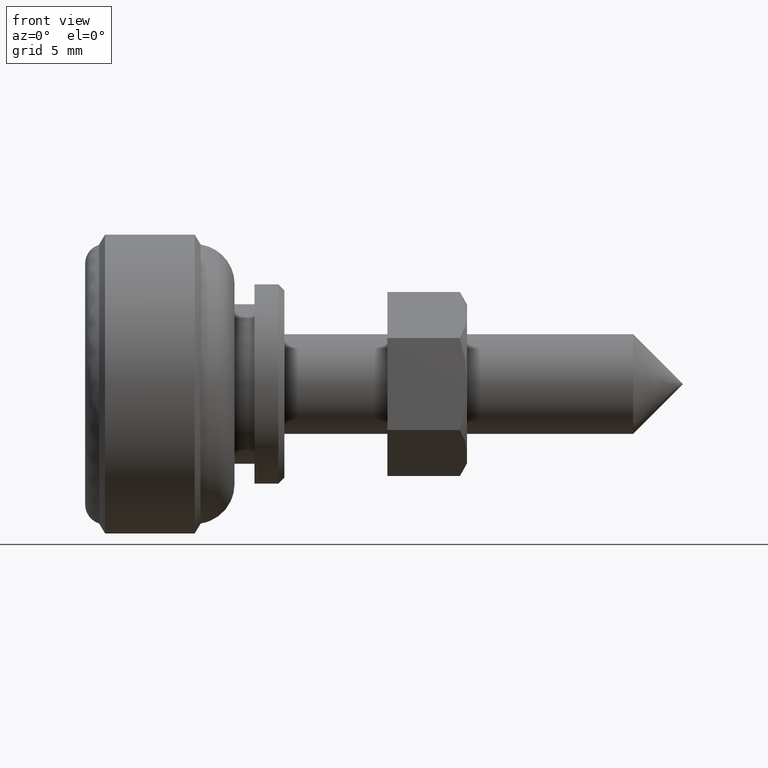
[diagram: clean part render]
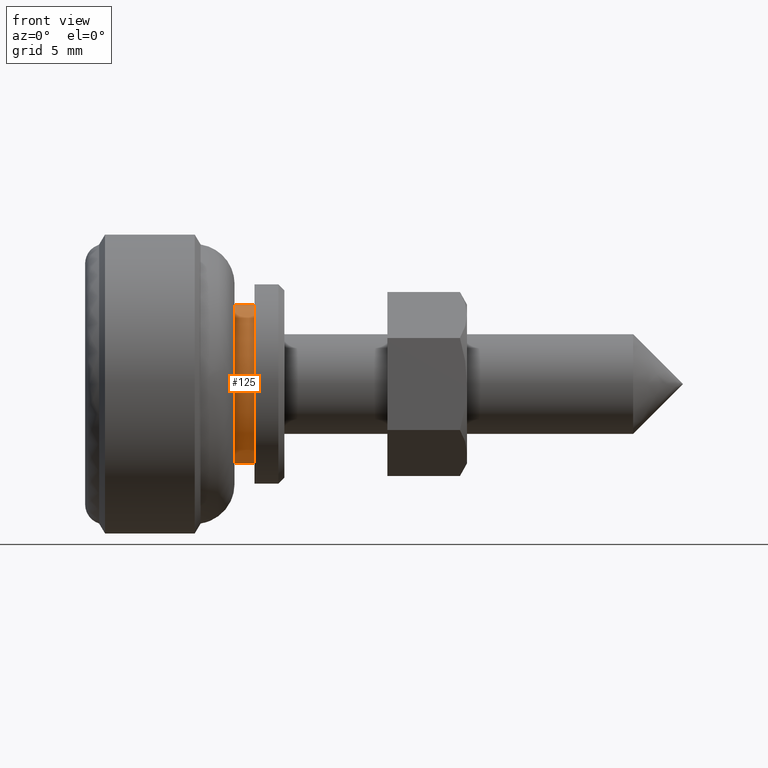
[diagram: same view with one face highlighted and labeled with its STEP entity id]
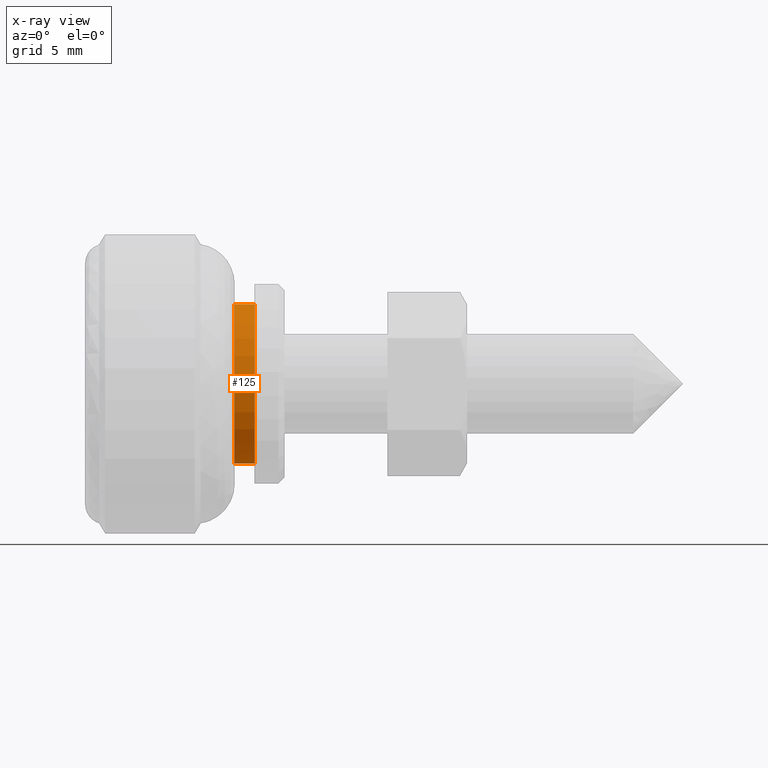
[diagram: x-ray of the same camera — body ghosted, the highlighted face saturated]
A machine part, front view. The second image highlights one B-rep face of the part: STEP entity #125.
The next image is the same camera in x-ray: the body ghosted, the highlighted face saturated — about 0% of this face is hidden behind the body in this view.
In plain terms, the highlighted cylindrical surface (partial cylindrical patch) has radius 4 mm, axis along (1, 0, 0).
Its self-contained STEP definition (entity closure, byte-faithful):
#125=ADVANCED_FACE('',(#286),#285,.T.);
#285=CYLINDRICAL_SURFACE('',#652,4.00000000000E+00);
#286=FACE_OUTER_BOUND('',#653,.T.);
#649=CARTESIAN_POINT('',(0.00000000000E+00,0.00000000000E+00,1.79625203600E-11));
#650=DIRECTION('',(1.00000000000E+00,-0.00000000000E+00,-0.00000000000E+00));
#651=DIRECTION('',(-0.00000000000E+00,-0.00000000000E+00,-1.00000000000E+00));
#652=AXIS2_PLACEMENT_3D('',#649,#650,#651);
#653=EDGE_LOOP('',(#954,#955,#956,#957));
#954=ORIENTED_EDGE('',*,*,#1087,.F.);
#955=ORIENTED_EDGE('',*,*,#1100,.T.);
#956=ORIENTED_EDGE('',*,*,#1082,.T.);
#957=ORIENTED_EDGE('',*,*,#1101,.F.);
#1082=EDGE_CURVE('',#1214,#1215,#1216,.T.);
#1087=EDGE_CURVE('',#1243,#1242,#1250,.T.);
#1100=EDGE_CURVE('',#1243,#1214,#1333,.T.);
#1101=EDGE_CURVE('',#1242,#1215,#1339,.T.);
#1214=VERTEX_POINT('',#1753);
#1215=VERTEX_POINT('',#1754);
#1216=CIRCLE('',#1758,4.00000000000E+00);
#1242=VERTEX_POINT('',#1773);
#1243=VERTEX_POINT('',#1774);
#1250=CIRCLE('',#1782,4.00000000000E+00);
#1333=(BOUNDED_CURVE() B_SPLINE_CURVE(1,(#1820,#1821),.UNSPECIFIED.,.F.,.F.) B_SPLINE_CURVE_WITH_KNOTS((2,2),(8.33332935974E-02,9.16666633252E-01),.UNSPECIFIED.) CURVE() GEOMETRIC_REPRESENTATION_ITEM() RATIONAL_B_SPLINE_CURVE((1.00000000000E+00,1.00000000000E+00)) REPRESENTATION_ITEM('') );
#1339=(BOUNDED_CURVE() B_SPLINE_CURVE(1,(#1822,#1823),.UNSPECIFIED.,.F.,.F.) B_SPLINE_CURVE_WITH_KNOTS((2,2),(8.33333333333E-02,9.16666666667E-01),.UNSPECIFIED.) CURVE() GEOMETRIC_REPRESENTATION_ITEM() RATIONAL_B_SPLINE_CURVE((7.50000000000E-01,7.50000000000E-01)) REPRESENTATION_ITEM('') );
#1753=CARTESIAN_POINT('',(-2.15000000000E+01,4.44089209850E-16,-3.99999999998E+00));
#1754=CARTESIAN_POINT('',(-2.15000000000E+01,0.00000000000E+00,4.00000000002E+00));
#1755=CARTESIAN_POINT('',(-2.15000000000E+01,0.00000000000E+00,1.79625203600E-11));
#1756=DIRECTION('',(-1.00000000000E+00,0.00000000000E+00,0.00000000000E+00));
#1757=DIRECTION('',(0.00000000000E+00,-1.22460635382E-16,1.00000000000E+00));
#1758=AXIS2_PLACEMENT_3D('',#1755,#1756,#1757);
#1773=CARTESIAN_POINT('',(-2.25000000000E+01,0.00000000000E+00,4.00000000002E+00));
#1774=CARTESIAN_POINT('',(-2.25000000000E+01,4.44089209850E-16,-3.99999999998E+00));
#1779=CARTESIAN_POINT('',(-2.25000000000E+01,0.00000000000E+00,1.79625203600E-11));
#1780=DIRECTION('',(-1.00000000000E+00,0.00000000000E+00,0.00000000000E+00));
#1781=DIRECTION('',(0.00000000000E+00,-1.22460635382E-16,1.00000000000E+00));
#1782=AXIS2_PLACEMENT_3D('',#1779,#1780,#1781);
#1820=CARTESIAN_POINT('',(-2.25000000477E+01,0.00000000000E+00,-3.99999999998E+00));
#1821=CARTESIAN_POINT('',(-2.15000000401E+01,0.00000000000E+00,-3.99999999998E+00));
#1822=CARTESIAN_POINT('',(-2.25000000000E+01,-1.48029736617E-16,4.00000000002E+00));
#1823=CARTESIAN_POINT('',(-2.15000000000E+01,-1.48029736617E-16,4.00000000002E+00));